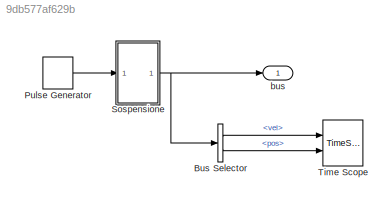
MODEL slx_9db577af629b
KIND model
BLOCK [BusSelector] Bus Selector
  OutputSignals = vel,pos
  Ports = [1, 2]
BLOCK [DiscretePulseGenerator] Pulse Generator
  Period = 10
  Ports = [0, 1]
  PulseType = Time based
  PulseWidth = 5
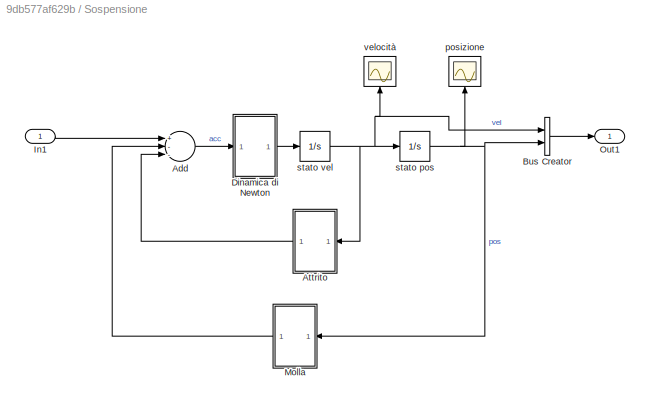
BLOCK [SubSystem] Sospensione
  FunctionWithSeparateData = off
  MaskHideContents = off
  MinAlgLoopOccurrences = off
  Opaque = off
  Ports = [1, 1]
  PropExecContextOutsideSubsystem = off
  RTWSystemCode = Auto
  RequestExecContextInheritance = off
BLOCK [Sum] Sospensione/Add
  InputSameDT = off
  Inputs = +--
  OutDataTypeStr = Inherit: Inherit via internal rule
  Ports = [3, 1]
  SaturateOnIntegerOverflow = off
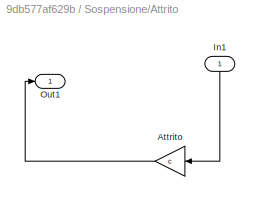
BLOCK [SubSystem] Sospensione/Attrito
  FunctionWithSeparateData = off
  MaskHideContents = off
  MinAlgLoopOccurrences = off
  Opaque = off
  Ports = [1, 1]
  PropExecContextOutsideSubsystem = off
  RTWSystemCode = Auto
  RequestExecContextInheritance = off
BLOCK [Gain] Sospensione/Attrito/Attrito
  Gain = c
  OutDataTypeStr = Inherit: Inherit via internal rule
  ParamDataTypeStr = Inherit: Inherit via internal rule
  SaturateOnIntegerOverflow = off
BLOCK [Inport] Sospensione/Attrito/In1
  IconDisplay = Port number
BLOCK [Outport] Sospensione/Attrito/Out1
  IconDisplay = Port number
BLOCK [BusCreator] Sospensione/Bus Creator
  DisplayOption = bar
  Inputs = 2
  Ports = [2, 1]
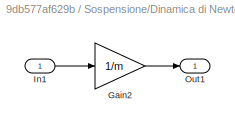
BLOCK [SubSystem] Sospensione/Dinamica di Newton
  FunctionWithSeparateData = off
  MaskHideContents = off
  MinAlgLoopOccurrences = off
  Opaque = off
  Ports = [1, 1]
  PropExecContextOutsideSubsystem = off
  RTWSystemCode = Auto
  RequestExecContextInheritance = off
BLOCK [Gain] Sospensione/Dinamica di Newton/Gain2
  Gain = 1/m
  OutDataTypeStr = Inherit: Inherit via internal rule
  ParamDataTypeStr = Inherit: Inherit via internal rule
  SaturateOnIntegerOverflow = off
BLOCK [Inport] Sospensione/Dinamica di Newton/In1
  IconDisplay = Port number
BLOCK [Outport] Sospensione/Dinamica di Newton/Out1
  IconDisplay = Port number
BLOCK [Inport] Sospensione/In1
  IconDisplay = Port number
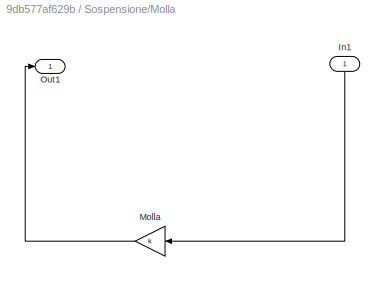
BLOCK [SubSystem] Sospensione/Molla
  FunctionWithSeparateData = off
  MaskHideContents = off
  MinAlgLoopOccurrences = off
  Opaque = off
  Ports = [1, 1]
  PropExecContextOutsideSubsystem = off
  RTWSystemCode = Auto
  RequestExecContextInheritance = off
BLOCK [Inport] Sospensione/Molla/In1
  IconDisplay = Port number
BLOCK [Gain] Sospensione/Molla/Molla
  Gain = k
  OutDataTypeStr = Inherit: Inherit via internal rule
  ParamDataTypeStr = Inherit: Inherit via internal rule
  SaturateOnIntegerOverflow = off
BLOCK [Outport] Sospensione/Molla/Out1
  IconDisplay = Port number
BLOCK [Outport] Sospensione/Out1
  IconDisplay = Port number
BLOCK [Scope] Sospensione/posizione
  DataFormat = StructureWithTime
  Floating = off
  NumInputPorts = 1
  Ports = [1]
  SampleTime = 0
  ShowLegends = off
BLOCK [Integrator] Sospensione/stato pos
  InitialCondition = x0
  Ports = [1, 1]
BLOCK [Integrator] Sospensione/stato vel
  Ports = [1, 1]
BLOCK [Scope] Sospensione/velocità
  DataFormat = StructureWithTime
  Floating = off
  NumInputPorts = 1
  Ports = [1]
  SampleTime = 0
  SaveName = ScopeData1
  ShowLegends = off
BLOCK [TimeScope] Time Scope
  CloseFcn = scopeextensions.ScopeBlock.callback(gcbh, 'onBlockClose');
  CopyFcn = scopeextensions.ScopeBlock.onCoreBlockCopy(gcbh);
  DefaultConfigurationName = spbscopes.TimeScopeBlockCfg
  DeleteFcn = scopeextensions.ScopeBlock.callback(gcbh, 'onBlockDelete');
  DestroyFcn = scopeextensions.ScopeBlock.onBlockDestroy(gcbh)
  NameChangeFcn = scopeextensions.ScopeBlock.callback(gcbh, 'onBlockRename');
  NumInputPorts = 2
  Ports = [2]
  PreDeleteFcn = scopeextensions.ScopeBlock.callback(gcbh, 'onBlockPreDelete');
  PreSaveFcn = scopeextensions.ScopeBlock.callback(gcbh, 'onModelSave');
  UserDataPersistent = on
BLOCK [Outport] bus
  IconDisplay = Port number
LINE Bus Selector:1 -> Time Scope:1
LINE Bus Selector:2 -> Time Scope:2
LINE Pulse Generator:1 -> Sospensione:1
LINE Sospensione/Add:1 -> Sospensione/Dinamica di Newton:1
LINE Sospensione/Attrito/Attrito:1 -> Sospensione/Attrito/Out1:1
LINE Sospensione/Attrito/In1:1 -> Sospensione/Attrito/Attrito:1
LINE Sospensione/Attrito:1 -> Sospensione/Add:3
LINE Sospensione/Bus Creator:1 -> Sospensione/Out1:1
LINE Sospensione/Dinamica di Newton/Gain2:1 -> Sospensione/Dinamica di Newton/Out1:1
LINE Sospensione/Dinamica di Newton/In1:1 -> Sospensione/Dinamica di Newton/Gain2:1
LINE Sospensione/Dinamica di Newton:1 -> Sospensione/stato vel:1
LINE Sospensione/In1:1 -> Sospensione/Add:1
LINE Sospensione/Molla/In1:1 -> Sospensione/Molla/Molla:1
LINE Sospensione/Molla/Molla:1 -> Sospensione/Molla/Out1:1
LINE Sospensione/Molla:1 -> Sospensione/Add:2
NET Sospensione/stato pos:1 -> Sospensione/Bus Creator:2, Sospensione/Molla:1, Sospensione/posizione:1
NET Sospensione/stato vel:1 -> Sospensione/Attrito:1, Sospensione/Bus Creator:1, Sospensione/stato pos:1, Sospensione/velocità:1
NET Sospensione:1 -> Bus Selector:1, bus:1
note: NET lines group one-source signal fan-out (src -> all destinations, sorted); 1:1 wires keep LINE
